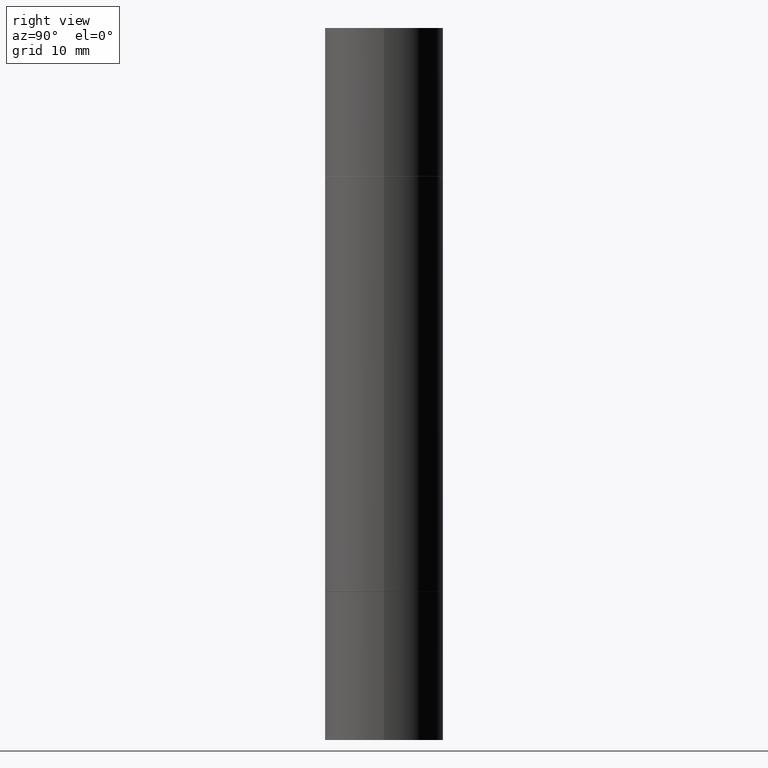
[diagram: clean part render]
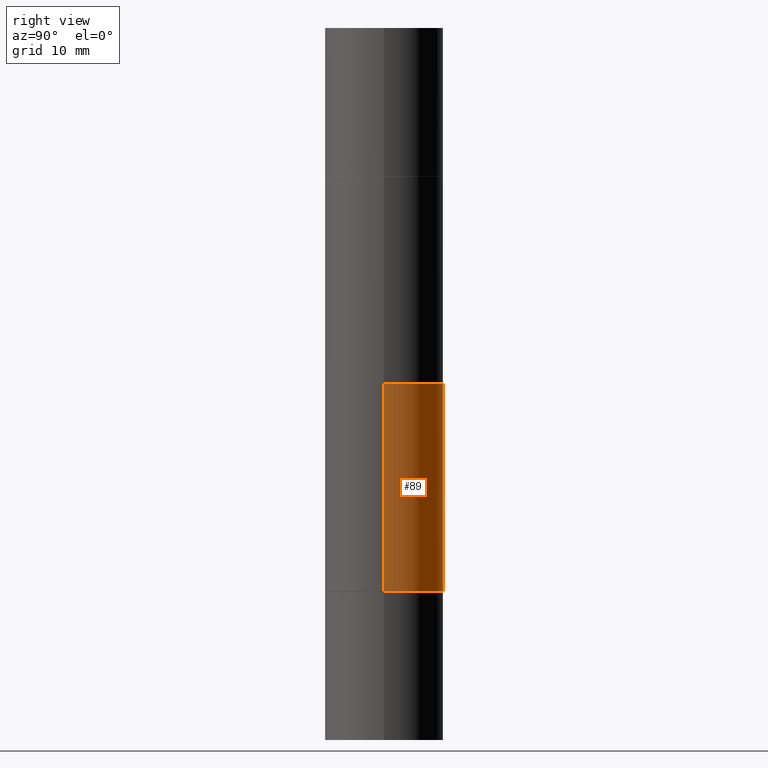
[diagram: same view with one face highlighted and labeled with its STEP entity id]
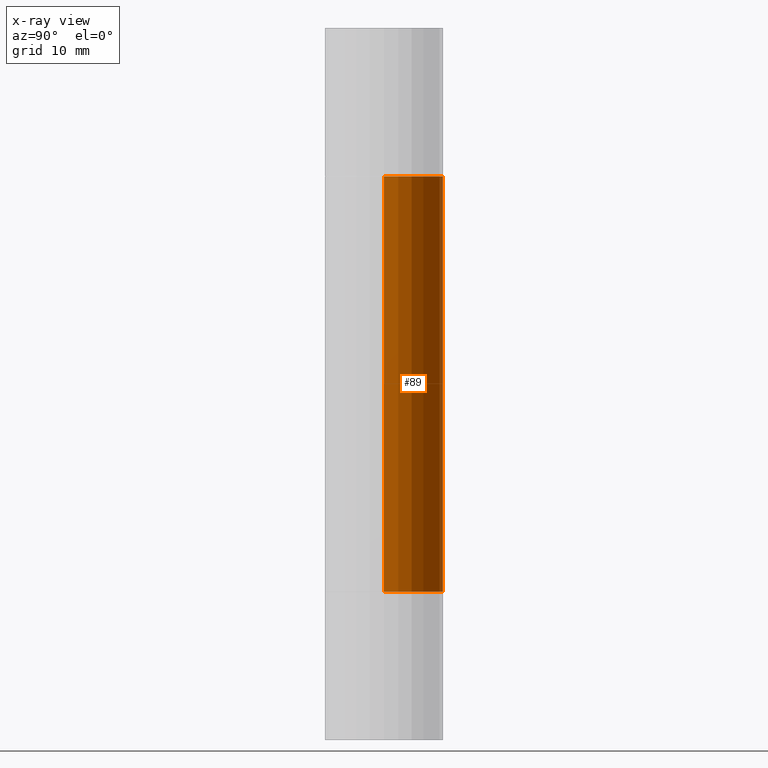
[diagram: x-ray of the same camera — body ghosted, the highlighted face saturated]
A machine part, right view. The second image highlights one B-rep face of the part: STEP entity #89.
The next image is the same camera in x-ray: the body ghosted, the highlighted face saturated — about 0% of this face is hidden behind the body in this view.
In plain terms, the highlighted cylindrical surface (partial cylindrical patch) has radius 6.35 mm, axis along (-0, -0, -1).
Its self-contained STEP definition (entity closure, byte-faithful):
#16 = DIRECTION ( 'NONE',  ( 2.445468806185136597E-29, 3.492890411551752677E-15, 1.000000000000000000 ) ) ;
#38 = EDGE_CURVE ( 'NONE', #334, #178, #467, .T. ) ;
#40 = DIRECTION ( 'NONE',  ( -2.445468806185136597E-29, 3.491481338843145583E-15, 1.000000000000000000 ) ) ;
#41 = CARTESIAN_POINT ( 'NONE',  ( 5.805542945883514935E-29, -2.184435788568482141E-15, -0.6259999999999990017 ) ) ;
#58 = DIRECTION ( 'NONE',  ( -2.445468806185136597E-29, -3.492890411551752677E-15, -1.000000000000000000 ) ) ;
#89 = ADVANCED_FACE ( 'NONE', ( #111 ), #539, .T. ) ;
#111 = FACE_OUTER_BOUND ( 'NONE', #248, .T. ) ;
#174 = EDGE_CURVE ( 'NONE', #516, #360, #208, .T. ) ;
#178 = VERTEX_POINT ( 'NONE', #306 ) ;
#199 = AXIS2_PLACEMENT_3D ( 'NONE', #362, #40, #573 ) ;
#208 = CIRCLE ( 'NONE', #199, 0.2500000000000000000 ) ;
#218 = CARTESIAN_POINT ( 'NONE',  ( -0.2500000000000000000, -3.522097508821832131E-15, -2.374000000000000110 ) ) ;
#231 = DIRECTION ( 'NONE',  ( 1.000000000000000000, -6.982962677686266711E-15, 0.000000000000000000 ) ) ;
#247 = CARTESIAN_POINT ( 'NONE',  ( -0.2499999999999998335, -8.761433126149462132E-15, -2.999999999999999112 ) ) ;
#248 = EDGE_LOOP ( 'NONE', ( #397, #557, #412, #601 ) ) ;
#256 = EDGE_CURVE ( 'NONE', #334, #516, #389, .T. ) ;
#277 = DIRECTION ( 'NONE',  ( -2.445468806185136877E-29, -3.492890411551753071E-15, -1.000000000000000000 ) ) ;
#306 = CARTESIAN_POINT ( 'NONE',  ( -0.2500000000000000000, -4.693112891255996450E-16, -0.6259999999999990017 ) ) ;
#334 = VERTEX_POINT ( 'NONE', #435 ) ;
#336 = CARTESIAN_POINT ( 'NONE',  ( 0.000000000000000000, -1.047655762559234344E-14, -2.999999999999999112 ) ) ;
#360 = VERTEX_POINT ( 'NONE', #218 ) ;
#362 = CARTESIAN_POINT ( 'NONE',  ( 5.805542945883514935E-29, -8.288776698413628688E-15, -2.374000000000000110 ) ) ;
#373 = DIRECTION ( 'NONE',  ( 1.000000000000000000, -6.982962677686267499E-15, 0.000000000000000000 ) ) ;
#389 = LINE ( 'NONE', #595, #430 ) ;
#397 = ORIENTED_EDGE ( 'NONE', *, *, #602, .F. ) ;
#412 = ORIENTED_EDGE ( 'NONE', *, *, #256, .T. ) ;
#418 = LINE ( 'NONE', #247, #459 ) ;
#427 = CARTESIAN_POINT ( 'NONE',  ( 0.2500000000000000000, -1.003451736783519537E-14, -2.374000000000000110 ) ) ;
#430 = VECTOR ( 'NONE', #277, 39.37007874015748143 ) ;
#435 = CARTESIAN_POINT ( 'NONE',  ( 0.2500000000000000000, -3.930176457990049608E-15, -0.6259999999999990017 ) ) ;
#459 = VECTOR ( 'NONE', #461, 39.37007874015748143 ) ;
#461 = DIRECTION ( 'NONE',  ( -2.445468806185136877E-29, -3.492890411551753071E-15, -1.000000000000000000 ) ) ;
#467 = CIRCLE ( 'NONE', #615, 0.2500000000000000000 ) ;
#512 = AXIS2_PLACEMENT_3D ( 'NONE', #336, #58, #373 ) ;
#516 = VERTEX_POINT ( 'NONE', #427 ) ;
#539 = CYLINDRICAL_SURFACE ( 'NONE', #512, 0.2499999999999998335 ) ;
#557 = ORIENTED_EDGE ( 'NONE', *, *, #38, .F. ) ;
#573 = DIRECTION ( 'NONE',  ( 1.000000000000000000, -6.982962677686266711E-15, 0.000000000000000000 ) ) ;
#595 = CARTESIAN_POINT ( 'NONE',  ( 0.2499999999999998335, -1.222229829501391012E-14, -2.999999999999999112 ) ) ;
#601 = ORIENTED_EDGE ( 'NONE', *, *, #174, .T. ) ;
#602 = EDGE_CURVE ( 'NONE', #178, #360, #418, .T. ) ;
#615 = AXIS2_PLACEMENT_3D ( 'NONE', #41, #16, #231 ) ;